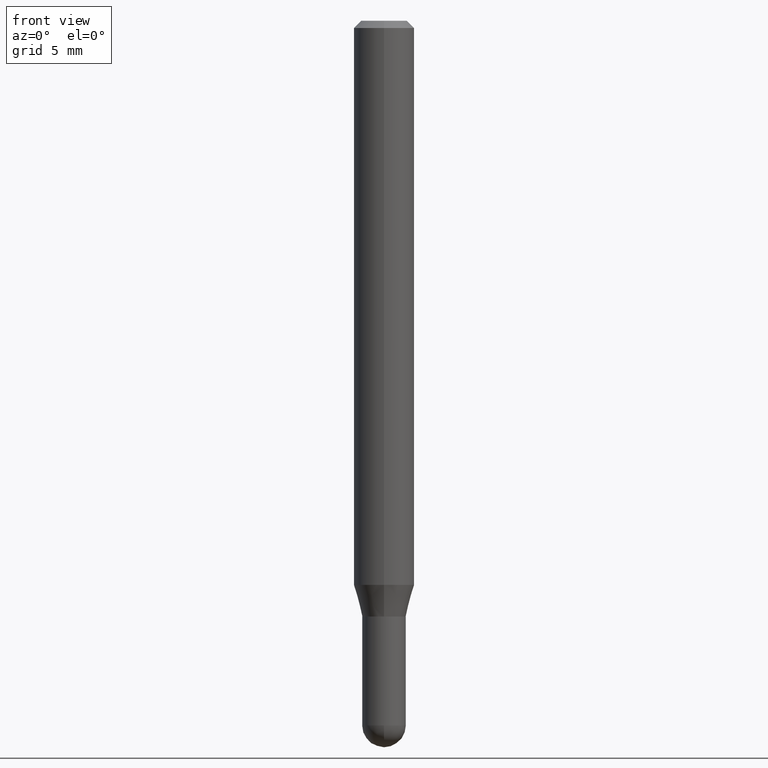
[diagram: clean part render]
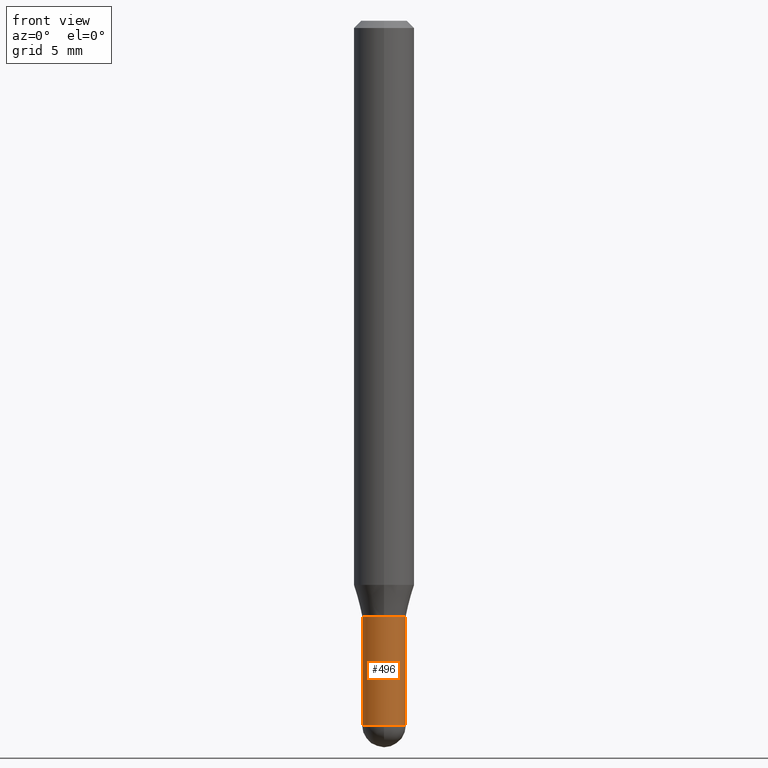
[diagram: same view with one face highlighted and labeled with its STEP entity id]
A machine part, front view. The second image highlights one B-rep face of the part: STEP entity #496.
In plain terms, the highlighted cylindrical surface (edge-blend (fillet) strip) has radius 1.143 mm, axis along (-0, 0, 1).
Its self-contained STEP definition (entity closure, byte-faithful):
#2 = CARTESIAN_POINT ( 'NONE',  ( 0.04500000000000001221, -5.001547017892805729E-15, -1.455000000000000293 ) ) ;
#12 = EDGE_CURVE ( 'NONE', #485, #113, #409, .T. ) ;
#15 = LINE ( 'NONE', #206, #275 ) ;
#20 = AXIS2_PLACEMENT_3D ( 'NONE', #330, #213, #370 ) ;
#29 = DIRECTION ( 'NONE',  ( 1.000000000000000000, -6.982962677686266711E-15, 0.000000000000000000 ) ) ;
#39 = EDGE_CURVE ( 'NONE', #216, #485, #176, .T. ) ;
#44 = CARTESIAN_POINT ( 'NONE',  ( -0.04499999999999999833, -4.367569466304877886E-15, -1.230000000000000204 ) ) ;
#51 = AXIS2_PLACEMENT_3D ( 'NONE', #157, #285, #54 ) ;
#54 = DIRECTION ( 'NONE',  ( 1.000000000000000000, -6.982962677686267499E-15, 4.876176775795935793E-29 ) ) ;
#68 = ORIENTED_EDGE ( 'NONE', *, *, #498, .F. ) ;
#74 = AXIS2_PLACEMENT_3D ( 'NONE', #144, #459, #29 ) ;
#108 = DIRECTION ( 'NONE',  ( -2.445468806185136597E-29, 3.491481338843145583E-15, 1.000000000000000000 ) ) ;
#113 = VERTEX_POINT ( 'NONE', #488 ) ;
#120 = CYLINDRICAL_SURFACE ( 'NONE', #51, 0.04500000000000000527 ) ;
#131 = ORIENTED_EDGE ( 'NONE', *, *, #39, .T. ) ;
#140 = ORIENTED_EDGE ( 'NONE', *, *, #286, .T. ) ;
#144 = CARTESIAN_POINT ( 'NONE',  ( 3.558157112999374623E-29, -5.080105348016777334E-15, -1.455000000000000293 ) ) ;
#146 = VERTEX_POINT ( 'NONE', #374 ) ;
#157 = CARTESIAN_POINT ( 'NONE',  ( 0.000000000000000000, 0.000000000000000000, 0.000000000000000000 ) ) ;
#176 = CIRCLE ( 'NONE', #20, 0.04500000000000001221 ) ;
#190 = EDGE_LOOP ( 'NONE', ( #68, #140, #131, #303, #272 ) ) ;
#206 = CARTESIAN_POINT ( 'NONE',  ( -0.04500000000000000527, 3.197442310920451211E-16, -2.213520790614707910E-30 ) ) ;
#213 = DIRECTION ( 'NONE',  ( -2.445468806185136597E-29, 3.491481338843145583E-15, 1.000000000000000000 ) ) ;
#216 = VERTEX_POINT ( 'NONE', #422 ) ;
#272 = ORIENTED_EDGE ( 'NONE', *, *, #295, .F. ) ;
#275 = VECTOR ( 'NONE', #289, 39.37007874015748143 ) ;
#285 = DIRECTION ( 'NONE',  ( -2.445468806185136597E-29, 3.491481338843145583E-15, 1.000000000000000000 ) ) ;
#286 = EDGE_CURVE ( 'NONE', #146, #216, #448, .T. ) ;
#289 = DIRECTION ( 'NONE',  ( -2.445468806185136877E-29, 3.491481338843145188E-15, 1.000000000000000000 ) ) ;
#295 = EDGE_CURVE ( 'NONE', #423, #113, #357, .T. ) ;
#303 = ORIENTED_EDGE ( 'NONE', *, *, #12, .T. ) ;
#330 = CARTESIAN_POINT ( 'NONE',  ( 3.558157112999374623E-29, -5.080105348016777334E-15, -1.455000000000000293 ) ) ;
#338 = VECTOR ( 'NONE', #415, 39.37007874015748143 ) ;
#345 = AXIS2_PLACEMENT_3D ( 'NONE', #468, #108, #350 ) ;
#350 = DIRECTION ( 'NONE',  ( 1.000000000000000000, -6.982962677686269077E-15, 0.000000000000000000 ) ) ;
#357 = CIRCLE ( 'NONE', #345, 0.04499999999999999833 ) ;
#370 = DIRECTION ( 'NONE',  ( 1.000000000000000000, -6.982962677686266711E-15, 0.000000000000000000 ) ) ;
#374 = CARTESIAN_POINT ( 'NONE',  ( -0.04500000000000001221, -4.367569466304877886E-15, -1.455000000000000293 ) ) ;
#409 = LINE ( 'NONE', #442, #338 ) ;
#415 = DIRECTION ( 'NONE',  ( -2.445468806185136877E-29, 3.491481338843145188E-15, 1.000000000000000000 ) ) ;
#422 = CARTESIAN_POINT ( 'NONE',  ( -3.142333204958468779E-16, -0.04500000000000515393, -1.454999999999999849 ) ) ;
#423 = VERTEX_POINT ( 'NONE', #44 ) ;
#442 = CARTESIAN_POINT ( 'NONE',  ( 0.04500000000000000527, -3.142333204958820809E-16, 2.194279549108171317E-30 ) ) ;
#448 = CIRCLE ( 'NONE', #74, 0.04500000000000001221 ) ;
#459 = DIRECTION ( 'NONE',  ( -2.445468806185136597E-29, 3.491481338843145583E-15, 1.000000000000000000 ) ) ;
#468 = CARTESIAN_POINT ( 'NONE',  ( 3.007926631607718216E-29, -4.294522046777069173E-15, -1.230000000000000204 ) ) ;
#477 = FACE_OUTER_BOUND ( 'NONE', #190, .T. ) ;
#485 = VERTEX_POINT ( 'NONE', #2 ) ;
#488 = CARTESIAN_POINT ( 'NONE',  ( 0.04499999999999999833, -4.608755367272951648E-15, -1.230000000000000204 ) ) ;
#496 = ADVANCED_FACE ( 'NONE', ( #477 ), #120, .T. ) ;
#498 = EDGE_CURVE ( 'NONE', #146, #423, #15, .T. ) ;